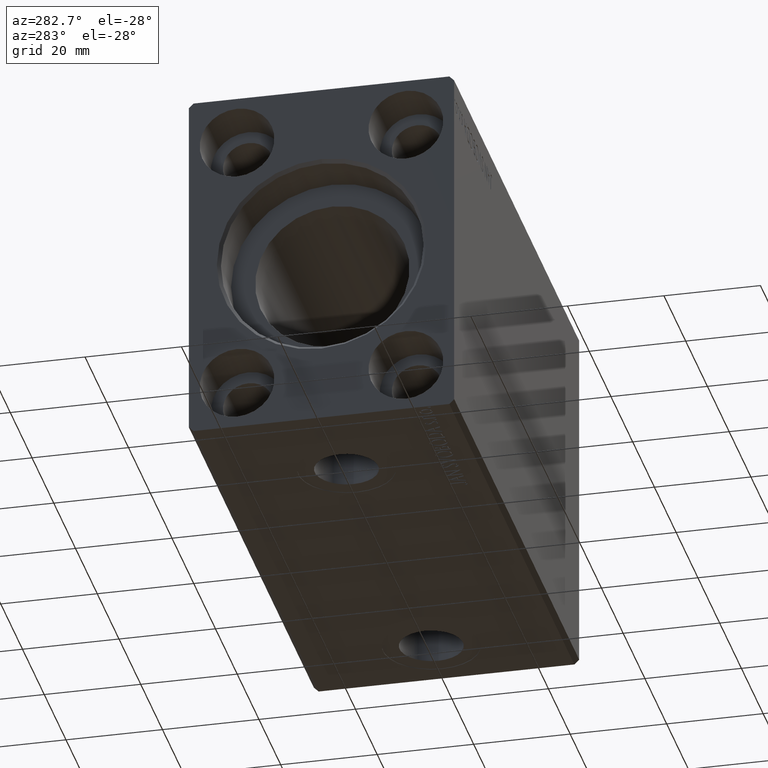
[diagram: clean part render]
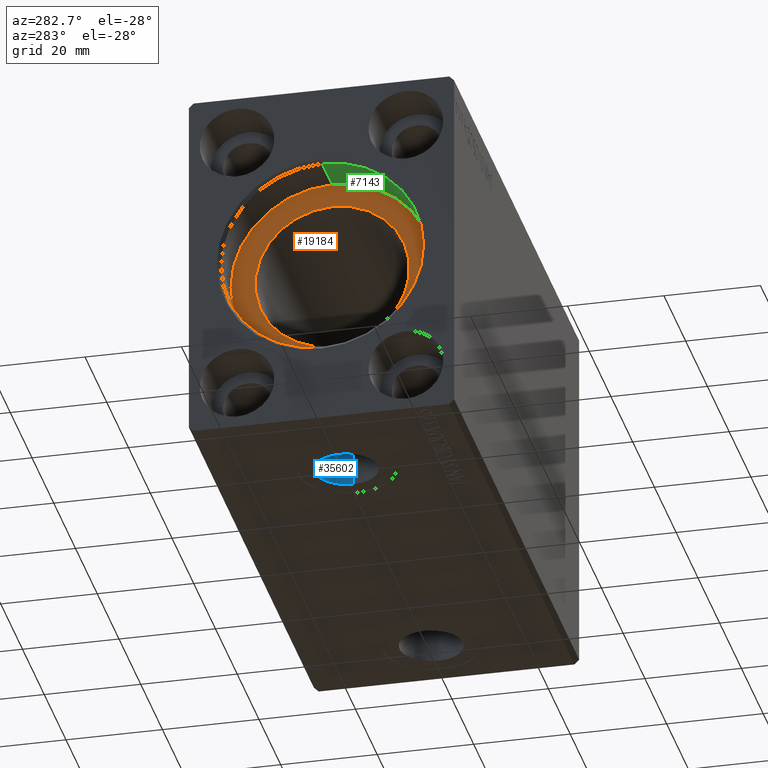
[diagram: same view with three faces highlighted in distinct colors, each labeled with its STEP entity id]
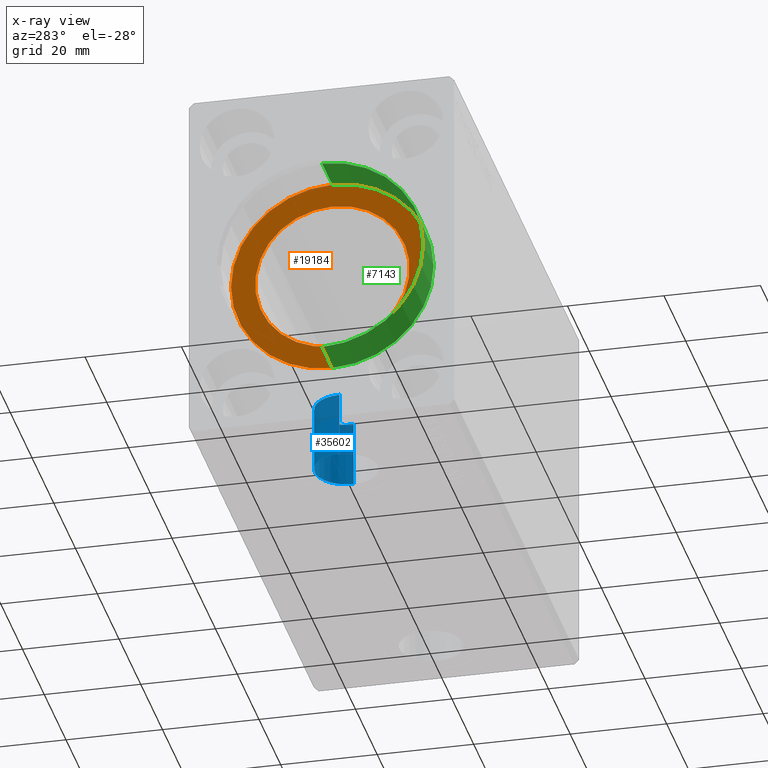
[diagram: x-ray of the same camera — body ghosted, the three highlighted faces saturated]
A machine part, auxiliary view with three faces highlighted in distinct colors.
The next image is the same camera in x-ray (body ghosted, the three faces saturated) — at least one of them is partly hidden behind the body in this view.
Their STEP definitions:

[orange] entity #19184 — the highlighted planar face has unit normal (-1, 0, 0).
#3197 = AXIS2_PLACEMENT_3D ( 'NONE', #14192, #33829, #20228 ) ;
#3734 = DIRECTION ( 'NONE',  ( 0.000000000000000000, 0.000000000000000000, 1.000000000000000000 ) ) ;
#5150 = DIRECTION ( 'NONE',  ( 0.000000000000000000, 0.000000000000000000, 1.000000000000000000 ) ) ;
#6572 = ORIENTED_EDGE ( 'NONE', *, *, #38316, .T. ) ;
#7293 = VERTEX_POINT ( 'NONE', #37027 ) ;
#8187 = DIRECTION ( 'NONE',  ( -1.000000000000000000, 0.000000000000000000, 0.000000000000000000 ) ) ;
#11129 = CIRCLE ( 'NONE', #35231, 21.00000000000000000 ) ;
#12511 = DIRECTION ( 'NONE',  ( 0.000000000000000000, 0.000000000000000000, 1.000000000000000000 ) ) ;
#14192 = CARTESIAN_POINT ( 'NONE',  ( 10.00000000000000000, 0.000000000000000000, 0.000000000000000000 ) ) ;
#14666 = EDGE_LOOP ( 'NONE', ( #18570, #41859 ) ) ;
#15440 = VERTEX_POINT ( 'NONE', #33452 ) ;
#16655 = PLANE ( 'NONE',  #33107 ) ;
#18496 = DIRECTION ( 'NONE',  ( -1.000000000000000000, 0.000000000000000000, 0.000000000000000000 ) ) ;
#18570 = ORIENTED_EDGE ( 'NONE', *, *, #21855, .F. ) ;
#19184 = ADVANCED_FACE ( 'NONE', ( #36494, #39943 ), #16655, .T. ) ;
#19664 = CARTESIAN_POINT ( 'NONE',  ( 10.00000000000000000, 0.000000000000000000, 0.000000000000000000 ) ) ;
#20228 = DIRECTION ( 'NONE',  ( 0.000000000000000000, 0.000000000000000000, 1.000000000000000000 ) ) ;
#21499 = CIRCLE ( 'NONE', #39382, 16.00000000000000000 ) ;
#21855 = EDGE_CURVE ( 'NONE', #7293, #15440, #29051, .T. ) ;
#22819 = AXIS2_PLACEMENT_3D ( 'NONE', #35314, #18496, #5150 ) ;
#22887 = EDGE_CURVE ( 'NONE', #26706, #27652, #11129, .T. ) ;
#23876 = EDGE_CURVE ( 'NONE', #15440, #7293, #21499, .T. ) ;
#24988 = CARTESIAN_POINT ( 'NONE',  ( 9.999999999999994671, 0.000000000000000000, 0.000000000000000000 ) ) ;
#26313 = EDGE_LOOP ( 'NONE', ( #6572, #33329 ) ) ;
#26706 = VERTEX_POINT ( 'NONE', #26726 ) ;
#26726 = CARTESIAN_POINT ( 'NONE',  ( 10.00000000000000000, 2.571758278209441661E-15, -21.00000000000000000 ) ) ;
#27652 = VERTEX_POINT ( 'NONE', #31714 ) ;
#28477 = DIRECTION ( 'NONE',  ( -1.000000000000000000, 0.000000000000000000, 0.000000000000000000 ) ) ;
#29051 = CIRCLE ( 'NONE', #22819, 16.00000000000000000 ) ;
#31714 = CARTESIAN_POINT ( 'NONE',  ( 10.00000000000000000, 0.000000000000000000, 21.00000000000000000 ) ) ;
#33107 = AXIS2_PLACEMENT_3D ( 'NONE', #19664, #42541, #3734 ) ;
#33329 = ORIENTED_EDGE ( 'NONE', *, *, #22887, .T. ) ;
#33452 = CARTESIAN_POINT ( 'NONE',  ( 9.999999999999994671, 1.959434878635765131E-15, -16.00000000000000000 ) ) ;
#33829 = DIRECTION ( 'NONE',  ( -1.000000000000000000, 0.000000000000000000, 0.000000000000000000 ) ) ;
#35231 = AXIS2_PLACEMENT_3D ( 'NONE', #42054, #28477, #12511 ) ;
#35314 = CARTESIAN_POINT ( 'NONE',  ( 9.999999999999994671, 0.000000000000000000, 0.000000000000000000 ) ) ;
#36494 = FACE_BOUND ( 'NONE', #14666, .T. ) ;
#37027 = CARTESIAN_POINT ( 'NONE',  ( 9.999999999999994671, 0.000000000000000000, 16.00000000000000000 ) ) ;
#38140 = DIRECTION ( 'NONE',  ( 0.000000000000000000, 0.000000000000000000, 1.000000000000000000 ) ) ;
#38316 = EDGE_CURVE ( 'NONE', #27652, #26706, #40459, .T. ) ;
#39382 = AXIS2_PLACEMENT_3D ( 'NONE', #24988, #8187, #38140 ) ;
#39943 = FACE_OUTER_BOUND ( 'NONE', #26313, .T. ) ;
#40459 = CIRCLE ( 'NONE', #3197, 21.00000000000000000 ) ;
#41859 = ORIENTED_EDGE ( 'NONE', *, *, #23876, .F. ) ;
#42054 = CARTESIAN_POINT ( 'NONE',  ( 10.00000000000000000, 0.000000000000000000, 0.000000000000000000 ) ) ;
#42541 = DIRECTION ( 'NONE',  ( -1.000000000000000000, 0.000000000000000000, 0.000000000000000000 ) ) ;

[blue] entity #35602 — the highlighted cylindrical surface (edge-blend (fillet) strip) has radius 6.58 mm, axis along (-0, -0, -1).
#219 = VECTOR ( 'NONE', #29216, 1000.000000000000000 ) ;
#702 = DIRECTION ( 'NONE',  ( 0.000000000000000000, 0.000000000000000000, -1.000000000000000000 ) ) ;
#3705 = ORIENTED_EDGE ( 'NONE', *, *, #32343, .F. ) ;
#5689 = EDGE_LOOP ( 'NONE', ( #8308, #3705, #22370, #32443 ) ) ;
#5709 = DIRECTION ( 'NONE',  ( -1.000000000000000000, 0.000000000000000000, 0.000000000000000000 ) ) ;
#6957 = CYLINDRICAL_SURFACE ( 'NONE', #21790, 6.580000000000002736 ) ;
#8308 = ORIENTED_EDGE ( 'NONE', *, *, #15207, .F. ) ;
#9180 = CARTESIAN_POINT ( 'NONE',  ( 29.58000000000000185, -2.727298015600992818E-15, -23.79999999999998650 ) ) ;
#9824 = CARTESIAN_POINT ( 'NONE',  ( 29.58000000000000185, -2.727298015600992818E-15, -23.79999999999998650 ) ) ;
#11740 = DIRECTION ( 'NONE',  ( 0.000000000000000000, 0.000000000000000000, -1.000000000000000000 ) ) ;
#15207 = EDGE_CURVE ( 'NONE', #34129, #22561, #31825, .T. ) ;
#15487 = AXIS2_PLACEMENT_3D ( 'NONE', #35238, #11740, #5709 ) ;
#16864 = CARTESIAN_POINT ( 'NONE',  ( 23.00000000000000000, -3.533115609439951465E-15, -23.79999999999998650 ) ) ;
#17082 = DIRECTION ( 'NONE',  ( -1.000000000000000000, 0.000000000000000000, 0.000000000000000000 ) ) ;
#17321 = AXIS2_PLACEMENT_3D ( 'NONE', #30226, #702, #19866 ) ;
#19866 = DIRECTION ( 'NONE',  ( -1.000000000000000000, 0.000000000000000000, 0.000000000000000000 ) ) ;
#20624 = CARTESIAN_POINT ( 'NONE',  ( 16.41999999999999815, -3.533115609439951465E-15, -37.39999999999999147 ) ) ;
#21790 = AXIS2_PLACEMENT_3D ( 'NONE', #16864, #39941, #17082 ) ;
#22276 = VERTEX_POINT ( 'NONE', #20624 ) ;
#22370 = ORIENTED_EDGE ( 'NONE', *, *, #26498, .T. ) ;
#22561 = VERTEX_POINT ( 'NONE', #36748 ) ;
#22813 = CIRCLE ( 'NONE', #17321, 6.580000000000002736 ) ;
#23114 = FACE_OUTER_BOUND ( 'NONE', #5689, .T. ) ;
#23152 = CARTESIAN_POINT ( 'NONE',  ( 16.41999999999999815, -3.533115609439951465E-15, -23.79999999999998650 ) ) ;
#25829 = EDGE_CURVE ( 'NONE', #22276, #22561, #22813, .T. ) ;
#26498 = EDGE_CURVE ( 'NONE', #39601, #22276, #29429, .T. ) ;
#28587 = DIRECTION ( 'NONE',  ( -0.000000000000000000, -0.000000000000000000, -1.000000000000000000 ) ) ;
#29216 = DIRECTION ( 'NONE',  ( -0.000000000000000000, -0.000000000000000000, -1.000000000000000000 ) ) ;
#29289 = CIRCLE ( 'NONE', #15487, 6.580000000000002736 ) ;
#29429 = LINE ( 'NONE', #23152, #219 ) ;
#30226 = CARTESIAN_POINT ( 'NONE',  ( 23.00000000000000000, -3.533115609439951465E-15, -37.39999999999999147 ) ) ;
#31825 = LINE ( 'NONE', #9180, #34387 ) ;
#32343 = EDGE_CURVE ( 'NONE', #39601, #34129, #29289, .T. ) ;
#32443 = ORIENTED_EDGE ( 'NONE', *, *, #25829, .T. ) ;
#33838 = CARTESIAN_POINT ( 'NONE',  ( 16.41999999999999815, -3.533115609439951465E-15, -23.79999999999998650 ) ) ;
#34129 = VERTEX_POINT ( 'NONE', #9824 ) ;
#34387 = VECTOR ( 'NONE', #28587, 1000.000000000000000 ) ;
#35238 = CARTESIAN_POINT ( 'NONE',  ( 23.00000000000000000, -3.533115609439951465E-15, -23.79999999999998650 ) ) ;
#35602 = ADVANCED_FACE ( 'NONE', ( #23114 ), #6957, .F. ) ;
#36748 = CARTESIAN_POINT ( 'NONE',  ( 29.58000000000000185, -2.727298015600992818E-15, -37.39999999999999147 ) ) ;
#39601 = VERTEX_POINT ( 'NONE', #33838 ) ;
#39941 = DIRECTION ( 'NONE',  ( -0.000000000000000000, -0.000000000000000000, -1.000000000000000000 ) ) ;

[green] entity #7143 — the highlighted cylindrical surface (partial cylindrical patch) has radius 21 mm, axis along (-1, -0, -0).
#414 = DIRECTION ( 'NONE',  ( -1.000000000000000000, -0.000000000000000000, -0.000000000000000000 ) ) ;
#2962 = EDGE_CURVE ( 'NONE', #26706, #14191, #27655, .T. ) ;
#3631 = VERTEX_POINT ( 'NONE', #25796 ) ;
#5153 = CYLINDRICAL_SURFACE ( 'NONE', #40512, 21.00000000000000000 ) ;
#7143 = ADVANCED_FACE ( 'NONE', ( #34687 ), #5153, .F. ) ;
#7939 = LINE ( 'NONE', #30374, #36301 ) ;
#11129 = CIRCLE ( 'NONE', #35231, 21.00000000000000000 ) ;
#12511 = DIRECTION ( 'NONE',  ( 0.000000000000000000, 0.000000000000000000, 1.000000000000000000 ) ) ;
#13977 = ORIENTED_EDGE ( 'NONE', *, *, #27429, .T. ) ;
#14191 = VERTEX_POINT ( 'NONE', #26727 ) ;
#14432 = DIRECTION ( 'NONE',  ( -1.000000000000000000, -0.000000000000000000, -0.000000000000000000 ) ) ;
#14709 = CARTESIAN_POINT ( 'NONE',  ( 10.00000000000000000, 2.571758278209441661E-15, -21.00000000000000000 ) ) ;
#15168 = DIRECTION ( 'NONE',  ( 0.000000000000000000, 0.000000000000000000, -1.000000000000000000 ) ) ;
#15450 = ORIENTED_EDGE ( 'NONE', *, *, #22887, .F. ) ;
#18286 = CARTESIAN_POINT ( 'NONE',  ( 10.00000000000000000, 0.000000000000000000, 0.000000000000000000 ) ) ;
#19884 = ORIENTED_EDGE ( 'NONE', *, *, #37332, .F. ) ;
#21461 = AXIS2_PLACEMENT_3D ( 'NONE', #24878, #32416, #15168 ) ;
#21853 = EDGE_LOOP ( 'NONE', ( #15450, #26073, #13977, #19884 ) ) ;
#22887 = EDGE_CURVE ( 'NONE', #26706, #27652, #11129, .T. ) ;
#24878 = CARTESIAN_POINT ( 'NONE',  ( 0.7000000000000443645, 0.000000000000000000, 0.000000000000000000 ) ) ;
#25796 = CARTESIAN_POINT ( 'NONE',  ( 0.7000000000000443645, 0.000000000000000000, 21.00000000000000000 ) ) ;
#26073 = ORIENTED_EDGE ( 'NONE', *, *, #2962, .T. ) ;
#26706 = VERTEX_POINT ( 'NONE', #26726 ) ;
#26726 = CARTESIAN_POINT ( 'NONE',  ( 10.00000000000000000, 2.571758278209441661E-15, -21.00000000000000000 ) ) ;
#26727 = CARTESIAN_POINT ( 'NONE',  ( 0.7000000000000443645, 2.571758278209441661E-15, -21.00000000000000000 ) ) ;
#27429 = EDGE_CURVE ( 'NONE', #14191, #3631, #40058, .T. ) ;
#27588 = DIRECTION ( 'NONE',  ( 0.000000000000000000, 0.000000000000000000, 1.000000000000000000 ) ) ;
#27652 = VERTEX_POINT ( 'NONE', #31714 ) ;
#27655 = LINE ( 'NONE', #14709, #32128 ) ;
#28477 = DIRECTION ( 'NONE',  ( -1.000000000000000000, 0.000000000000000000, 0.000000000000000000 ) ) ;
#30374 = CARTESIAN_POINT ( 'NONE',  ( 10.00000000000000000, 0.000000000000000000, 21.00000000000000000 ) ) ;
#31714 = CARTESIAN_POINT ( 'NONE',  ( 10.00000000000000000, 0.000000000000000000, 21.00000000000000000 ) ) ;
#32128 = VECTOR ( 'NONE', #37795, 1000.000000000000000 ) ;
#32416 = DIRECTION ( 'NONE',  ( -1.000000000000000000, 0.000000000000000000, 0.000000000000000000 ) ) ;
#34687 = FACE_OUTER_BOUND ( 'NONE', #21853, .T. ) ;
#35231 = AXIS2_PLACEMENT_3D ( 'NONE', #42054, #28477, #12511 ) ;
#36301 = VECTOR ( 'NONE', #414, 1000.000000000000000 ) ;
#37332 = EDGE_CURVE ( 'NONE', #27652, #3631, #7939, .T. ) ;
#37795 = DIRECTION ( 'NONE',  ( -1.000000000000000000, -0.000000000000000000, -0.000000000000000000 ) ) ;
#40058 = CIRCLE ( 'NONE', #21461, 21.00000000000000000 ) ;
#40512 = AXIS2_PLACEMENT_3D ( 'NONE', #18286, #14432, #27588 ) ;
#42054 = CARTESIAN_POINT ( 'NONE',  ( 10.00000000000000000, 0.000000000000000000, 0.000000000000000000 ) ) ;